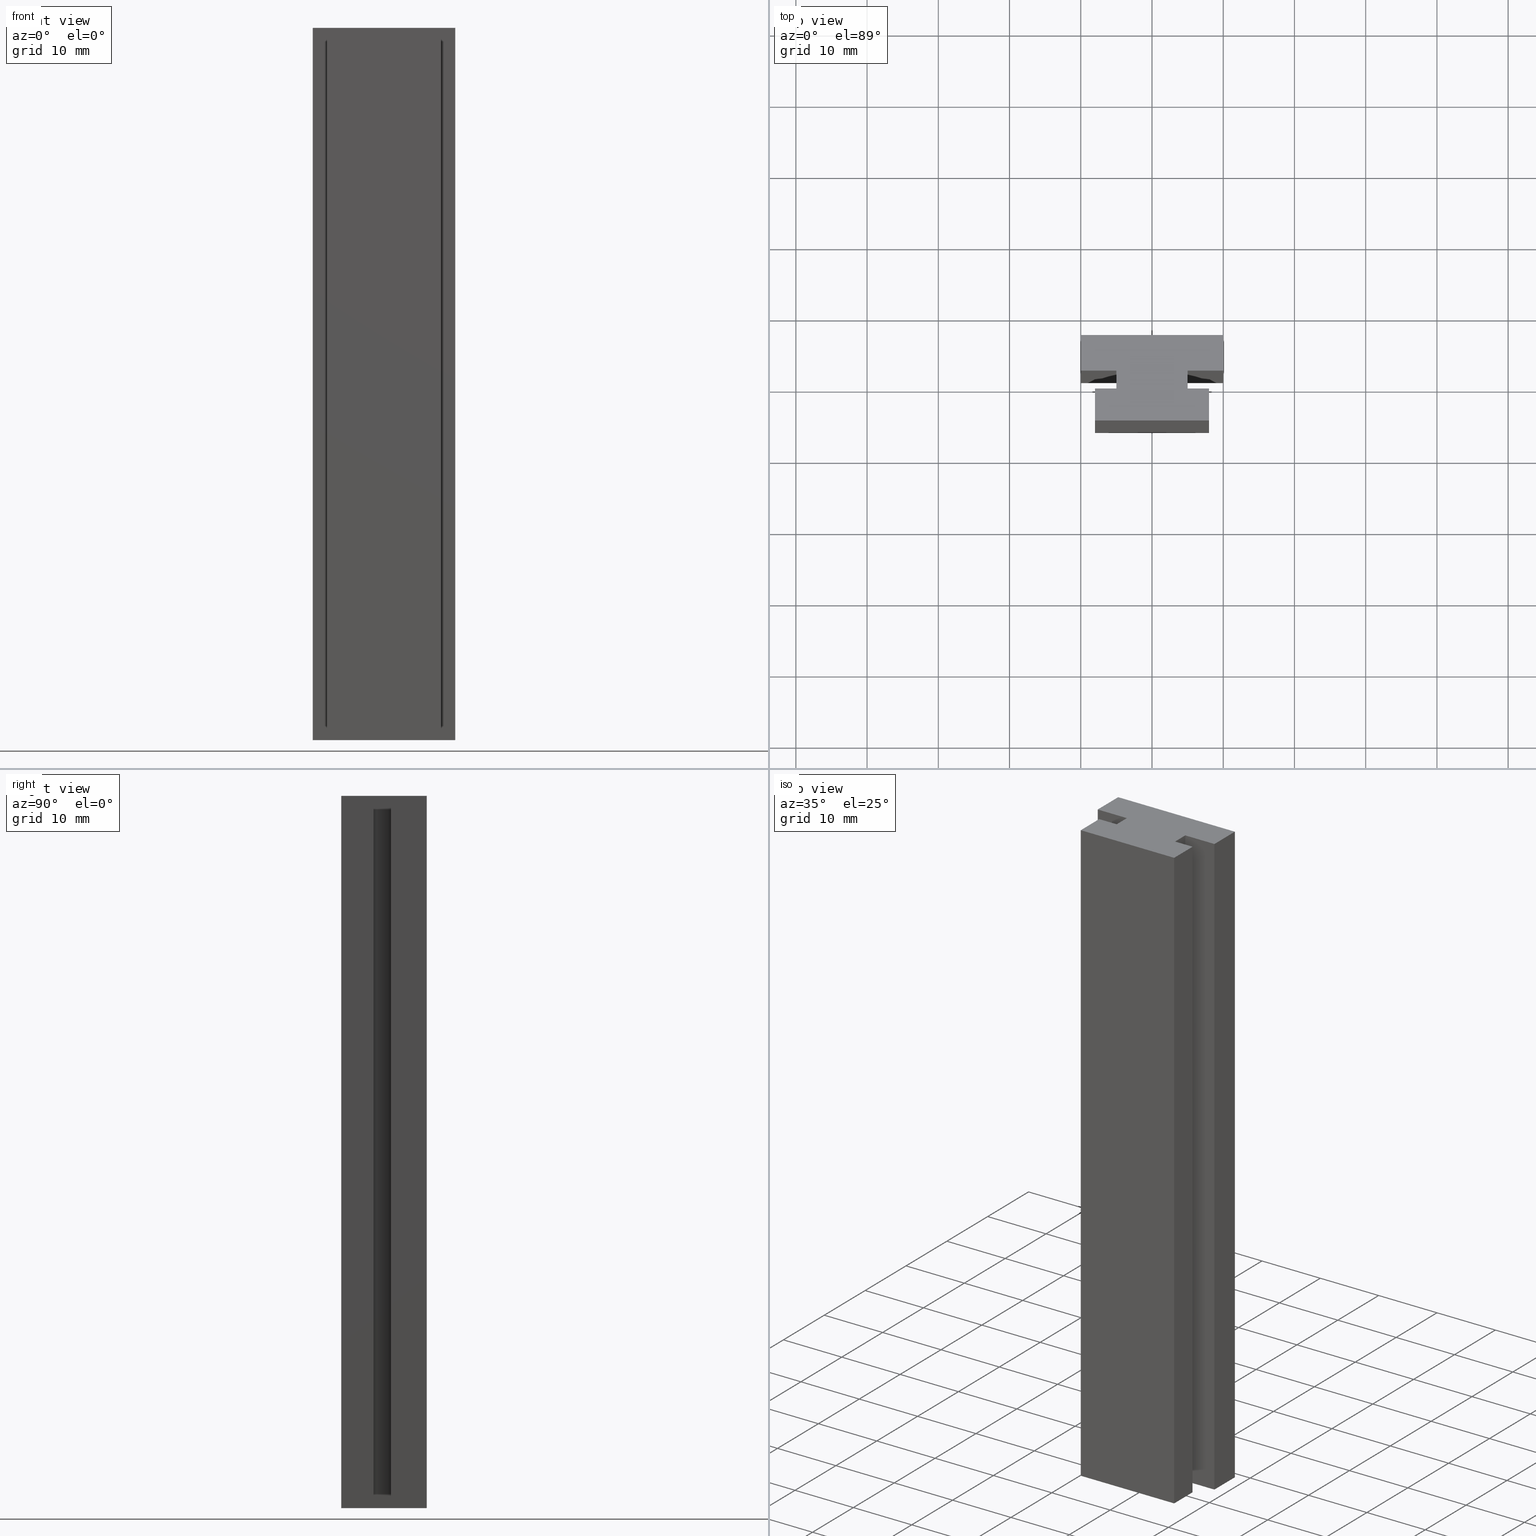
[diagram: canonical four-view strip — front | top / right | iso, engineering-drawing reading convention]
A machine part, canonical four-view strip (front | top / right | iso — engineering-drawing reading convention). The complete STEP part file that produces these views, byte-faithful:
ISO-10303-21;
HEADER;
/* Generated by software containing ST-Developer
 * from STEP Tools, Inc. (www.steptools.com) 
 */

FILE_DESCRIPTION(
/* description */ (''),
/* implementation_level */ '2;1');

FILE_NAME(
/* name */ 'Z:\\Nuovi render per accessori\\APRPZ0000018.stp',
/* time_stamp */ '2017-08-03T14:38:10+02:00',
/* author */ ('fzagni'),
/* organization */ (''),
/* preprocessor_version */ 'ST-DEVELOPER v16.1',
/* originating_system */ 'Autodesk Inventor 2016',
/* authorisation */ '');

FILE_SCHEMA (('AUTOMOTIVE_DESIGN { 1 0 10303 214 3 1 1 }'));
ENDSEC;

DATA;
#10=MECHANICAL_DESIGN_GEOMETRIC_PRESENTATION_REPRESENTATION('',(#13),#435);
#11=SHAPE_REPRESENTATION_RELATIONSHIP('SRR','None',#444,#12);
#12=ADVANCED_BREP_SHAPE_REPRESENTATION('',(#14),#434);
#13=STYLED_ITEM('',(#453),#14);
#14=MANIFOLD_SOLID_BREP('Solido1',#275);
#15=FACE_OUTER_BOUND('',#29,.T.);
#16=FACE_OUTER_BOUND('',#30,.T.);
#17=FACE_OUTER_BOUND('',#31,.T.);
#18=FACE_OUTER_BOUND('',#32,.T.);
#19=FACE_OUTER_BOUND('',#33,.T.);
#20=FACE_OUTER_BOUND('',#34,.T.);
#21=FACE_OUTER_BOUND('',#35,.T.);
#22=FACE_OUTER_BOUND('',#36,.T.);
#23=FACE_OUTER_BOUND('',#37,.T.);
#24=FACE_OUTER_BOUND('',#38,.T.);
#25=FACE_OUTER_BOUND('',#39,.T.);
#26=FACE_OUTER_BOUND('',#40,.T.);
#27=FACE_OUTER_BOUND('',#41,.T.);
#28=FACE_OUTER_BOUND('',#42,.T.);
#29=EDGE_LOOP('',(#175,#176,#177,#178));
#30=EDGE_LOOP('',(#179,#180,#181,#182));
#31=EDGE_LOOP('',(#183,#184,#185,#186));
#32=EDGE_LOOP('',(#187,#188,#189,#190));
#33=EDGE_LOOP('',(#191,#192,#193,#194));
#34=EDGE_LOOP('',(#195,#196,#197,#198));
#35=EDGE_LOOP('',(#199,#200,#201,#202));
#36=EDGE_LOOP('',(#203,#204,#205,#206));
#37=EDGE_LOOP('',(#207,#208,#209,#210));
#38=EDGE_LOOP('',(#211,#212,#213,#214));
#39=EDGE_LOOP('',(#215,#216,#217,#218));
#40=EDGE_LOOP('',(#219,#220,#221,#222));
#41=EDGE_LOOP('',(#223,#224,#225,#226,#227,#228,#229,#230,#231,#232,#233,
#234));
#42=EDGE_LOOP('',(#235,#236,#237,#238,#239,#240,#241,#242,#243,#244,#245,
#246));
#43=LINE('',#361,#79);
#44=LINE('',#363,#80);
#45=LINE('',#365,#81);
#46=LINE('',#366,#82);
#47=LINE('',#369,#83);
#48=LINE('',#371,#84);
#49=LINE('',#372,#85);
#50=LINE('',#375,#86);
#51=LINE('',#377,#87);
#52=LINE('',#378,#88);
#53=LINE('',#381,#89);
#54=LINE('',#383,#90);
#55=LINE('',#384,#91);
#56=LINE('',#387,#92);
#57=LINE('',#389,#93);
#58=LINE('',#390,#94);
#59=LINE('',#393,#95);
#60=LINE('',#395,#96);
#61=LINE('',#396,#97);
#62=LINE('',#399,#98);
#63=LINE('',#401,#99);
#64=LINE('',#402,#100);
#65=LINE('',#405,#101);
#66=LINE('',#407,#102);
#67=LINE('',#408,#103);
#68=LINE('',#411,#104);
#69=LINE('',#413,#105);
#70=LINE('',#414,#106);
#71=LINE('',#417,#107);
#72=LINE('',#419,#108);
#73=LINE('',#420,#109);
#74=LINE('',#423,#110);
#75=LINE('',#425,#111);
#76=LINE('',#426,#112);
#77=LINE('',#428,#113);
#78=LINE('',#429,#114);
#79=VECTOR('',#295,5.);
#80=VECTOR('',#296,100.);
#81=VECTOR('',#297,5.);
#82=VECTOR('',#298,100.);
#83=VECTOR('',#301,5.);
#84=VECTOR('',#302,5.);
#85=VECTOR('',#303,100.);
#86=VECTOR('',#306,2.5);
#87=VECTOR('',#307,2.5);
#88=VECTOR('',#308,100.);
#89=VECTOR('',#311,3.);
#90=VECTOR('',#312,3.);
#91=VECTOR('',#313,100.);
#92=VECTOR('',#316,4.5);
#93=VECTOR('',#317,4.5);
#94=VECTOR('',#318,100.);
#95=VECTOR('',#321,16.);
#96=VECTOR('',#322,16.);
#97=VECTOR('',#323,100.);
#98=VECTOR('',#326,4.5);
#99=VECTOR('',#327,4.5);
#100=VECTOR('',#328,100.);
#101=VECTOR('',#331,3.);
#102=VECTOR('',#332,3.);
#103=VECTOR('',#333,100.);
#104=VECTOR('',#336,2.5);
#105=VECTOR('',#337,2.5);
#106=VECTOR('',#338,100.);
#107=VECTOR('',#341,5.);
#108=VECTOR('',#342,5.);
#109=VECTOR('',#343,100.);
#110=VECTOR('',#346,5.);
#111=VECTOR('',#347,5.);
#112=VECTOR('',#348,100.);
#113=VECTOR('',#351,20.);
#114=VECTOR('',#352,20.);
#115=VERTEX_POINT('',#359);
#116=VERTEX_POINT('',#360);
#117=VERTEX_POINT('',#362);
#118=VERTEX_POINT('',#364);
#119=VERTEX_POINT('',#368);
#120=VERTEX_POINT('',#370);
#121=VERTEX_POINT('',#374);
#122=VERTEX_POINT('',#376);
#123=VERTEX_POINT('',#380);
#124=VERTEX_POINT('',#382);
#125=VERTEX_POINT('',#386);
#126=VERTEX_POINT('',#388);
#127=VERTEX_POINT('',#392);
#128=VERTEX_POINT('',#394);
#129=VERTEX_POINT('',#398);
#130=VERTEX_POINT('',#400);
#131=VERTEX_POINT('',#404);
#132=VERTEX_POINT('',#406);
#133=VERTEX_POINT('',#410);
#134=VERTEX_POINT('',#412);
#135=VERTEX_POINT('',#416);
#136=VERTEX_POINT('',#418);
#137=VERTEX_POINT('',#422);
#138=VERTEX_POINT('',#424);
#139=EDGE_CURVE('',#115,#116,#43,.T.);
#140=EDGE_CURVE('',#115,#117,#44,.T.);
#141=EDGE_CURVE('',#118,#117,#45,.T.);
#142=EDGE_CURVE('',#116,#118,#46,.T.);
#143=EDGE_CURVE('',#116,#119,#47,.T.);
#144=EDGE_CURVE('',#120,#118,#48,.T.);
#145=EDGE_CURVE('',#119,#120,#49,.T.);
#146=EDGE_CURVE('',#119,#121,#50,.T.);
#147=EDGE_CURVE('',#122,#120,#51,.T.);
#148=EDGE_CURVE('',#121,#122,#52,.T.);
#149=EDGE_CURVE('',#121,#123,#53,.T.);
#150=EDGE_CURVE('',#124,#122,#54,.T.);
#151=EDGE_CURVE('',#123,#124,#55,.T.);
#152=EDGE_CURVE('',#123,#125,#56,.T.);
#153=EDGE_CURVE('',#126,#124,#57,.T.);
#154=EDGE_CURVE('',#125,#126,#58,.T.);
#155=EDGE_CURVE('',#125,#127,#59,.T.);
#156=EDGE_CURVE('',#128,#126,#60,.T.);
#157=EDGE_CURVE('',#127,#128,#61,.T.);
#158=EDGE_CURVE('',#127,#129,#62,.T.);
#159=EDGE_CURVE('',#130,#128,#63,.T.);
#160=EDGE_CURVE('',#129,#130,#64,.T.);
#161=EDGE_CURVE('',#129,#131,#65,.T.);
#162=EDGE_CURVE('',#132,#130,#66,.T.);
#163=EDGE_CURVE('',#131,#132,#67,.T.);
#164=EDGE_CURVE('',#131,#133,#68,.T.);
#165=EDGE_CURVE('',#134,#132,#69,.T.);
#166=EDGE_CURVE('',#133,#134,#70,.T.);
#167=EDGE_CURVE('',#133,#135,#71,.T.);
#168=EDGE_CURVE('',#136,#134,#72,.T.);
#169=EDGE_CURVE('',#135,#136,#73,.T.);
#170=EDGE_CURVE('',#135,#137,#74,.T.);
#171=EDGE_CURVE('',#138,#136,#75,.T.);
#172=EDGE_CURVE('',#137,#138,#76,.T.);
#173=EDGE_CURVE('',#137,#115,#77,.T.);
#174=EDGE_CURVE('',#117,#138,#78,.T.);
#175=ORIENTED_EDGE('',*,*,#139,.F.);
#176=ORIENTED_EDGE('',*,*,#140,.T.);
#177=ORIENTED_EDGE('',*,*,#141,.F.);
#178=ORIENTED_EDGE('',*,*,#142,.F.);
#179=ORIENTED_EDGE('',*,*,#143,.F.);
#180=ORIENTED_EDGE('',*,*,#142,.T.);
#181=ORIENTED_EDGE('',*,*,#144,.F.);
#182=ORIENTED_EDGE('',*,*,#145,.F.);
#183=ORIENTED_EDGE('',*,*,#146,.F.);
#184=ORIENTED_EDGE('',*,*,#145,.T.);
#185=ORIENTED_EDGE('',*,*,#147,.F.);
#186=ORIENTED_EDGE('',*,*,#148,.F.);
#187=ORIENTED_EDGE('',*,*,#149,.F.);
#188=ORIENTED_EDGE('',*,*,#148,.T.);
#189=ORIENTED_EDGE('',*,*,#150,.F.);
#190=ORIENTED_EDGE('',*,*,#151,.F.);
#191=ORIENTED_EDGE('',*,*,#152,.F.);
#192=ORIENTED_EDGE('',*,*,#151,.T.);
#193=ORIENTED_EDGE('',*,*,#153,.F.);
#194=ORIENTED_EDGE('',*,*,#154,.F.);
#195=ORIENTED_EDGE('',*,*,#155,.F.);
#196=ORIENTED_EDGE('',*,*,#154,.T.);
#197=ORIENTED_EDGE('',*,*,#156,.F.);
#198=ORIENTED_EDGE('',*,*,#157,.F.);
#199=ORIENTED_EDGE('',*,*,#158,.F.);
#200=ORIENTED_EDGE('',*,*,#157,.T.);
#201=ORIENTED_EDGE('',*,*,#159,.F.);
#202=ORIENTED_EDGE('',*,*,#160,.F.);
#203=ORIENTED_EDGE('',*,*,#161,.F.);
#204=ORIENTED_EDGE('',*,*,#160,.T.);
#205=ORIENTED_EDGE('',*,*,#162,.F.);
#206=ORIENTED_EDGE('',*,*,#163,.F.);
#207=ORIENTED_EDGE('',*,*,#164,.F.);
#208=ORIENTED_EDGE('',*,*,#163,.T.);
#209=ORIENTED_EDGE('',*,*,#165,.F.);
#210=ORIENTED_EDGE('',*,*,#166,.F.);
#211=ORIENTED_EDGE('',*,*,#167,.F.);
#212=ORIENTED_EDGE('',*,*,#166,.T.);
#213=ORIENTED_EDGE('',*,*,#168,.F.);
#214=ORIENTED_EDGE('',*,*,#169,.F.);
#215=ORIENTED_EDGE('',*,*,#170,.F.);
#216=ORIENTED_EDGE('',*,*,#169,.T.);
#217=ORIENTED_EDGE('',*,*,#171,.F.);
#218=ORIENTED_EDGE('',*,*,#172,.F.);
#219=ORIENTED_EDGE('',*,*,#173,.F.);
#220=ORIENTED_EDGE('',*,*,#172,.T.);
#221=ORIENTED_EDGE('',*,*,#174,.F.);
#222=ORIENTED_EDGE('',*,*,#140,.F.);
#223=ORIENTED_EDGE('',*,*,#173,.T.);
#224=ORIENTED_EDGE('',*,*,#139,.T.);
#225=ORIENTED_EDGE('',*,*,#143,.T.);
#226=ORIENTED_EDGE('',*,*,#146,.T.);
#227=ORIENTED_EDGE('',*,*,#149,.T.);
#228=ORIENTED_EDGE('',*,*,#152,.T.);
#229=ORIENTED_EDGE('',*,*,#155,.T.);
#230=ORIENTED_EDGE('',*,*,#158,.T.);
#231=ORIENTED_EDGE('',*,*,#161,.T.);
#232=ORIENTED_EDGE('',*,*,#164,.T.);
#233=ORIENTED_EDGE('',*,*,#167,.T.);
#234=ORIENTED_EDGE('',*,*,#170,.T.);
#235=ORIENTED_EDGE('',*,*,#174,.T.);
#236=ORIENTED_EDGE('',*,*,#171,.T.);
#237=ORIENTED_EDGE('',*,*,#168,.T.);
#238=ORIENTED_EDGE('',*,*,#165,.T.);
#239=ORIENTED_EDGE('',*,*,#162,.T.);
#240=ORIENTED_EDGE('',*,*,#159,.T.);
#241=ORIENTED_EDGE('',*,*,#156,.T.);
#242=ORIENTED_EDGE('',*,*,#153,.T.);
#243=ORIENTED_EDGE('',*,*,#150,.T.);
#244=ORIENTED_EDGE('',*,*,#147,.T.);
#245=ORIENTED_EDGE('',*,*,#144,.T.);
#246=ORIENTED_EDGE('',*,*,#141,.T.);
#247=PLANE('',#277);
#248=PLANE('',#278);
#249=PLANE('',#279);
#250=PLANE('',#280);
#251=PLANE('',#281);
#252=PLANE('',#282);
#253=PLANE('',#283);
#254=PLANE('',#284);
#255=PLANE('',#285);
#256=PLANE('',#286);
#257=PLANE('',#287);
#258=PLANE('',#288);
#259=PLANE('',#289);
#260=PLANE('',#290);
#261=ADVANCED_FACE('',(#15),#247,.T.);
#262=ADVANCED_FACE('',(#16),#248,.T.);
#263=ADVANCED_FACE('',(#17),#249,.T.);
#264=ADVANCED_FACE('',(#18),#250,.T.);
#265=ADVANCED_FACE('',(#19),#251,.T.);
#266=ADVANCED_FACE('',(#20),#252,.T.);
#267=ADVANCED_FACE('',(#21),#253,.T.);
#268=ADVANCED_FACE('',(#22),#254,.T.);
#269=ADVANCED_FACE('',(#23),#255,.T.);
#270=ADVANCED_FACE('',(#24),#256,.T.);
#271=ADVANCED_FACE('',(#25),#257,.T.);
#272=ADVANCED_FACE('',(#26),#258,.T.);
#273=ADVANCED_FACE('',(#27),#259,.F.);
#274=ADVANCED_FACE('',(#28),#260,.T.);
#275=CLOSED_SHELL('',(#261,#262,#263,#264,#265,#266,#267,#268,#269,#270,
#271,#272,#273,#274));
#276=AXIS2_PLACEMENT_3D('placement',#357,#291,#292);
#277=AXIS2_PLACEMENT_3D('',#358,#293,#294);
#278=AXIS2_PLACEMENT_3D('',#367,#299,#300);
#279=AXIS2_PLACEMENT_3D('',#373,#304,#305);
#280=AXIS2_PLACEMENT_3D('',#379,#309,#310);
#281=AXIS2_PLACEMENT_3D('',#385,#314,#315);
#282=AXIS2_PLACEMENT_3D('',#391,#319,#320);
#283=AXIS2_PLACEMENT_3D('',#397,#324,#325);
#284=AXIS2_PLACEMENT_3D('',#403,#329,#330);
#285=AXIS2_PLACEMENT_3D('',#409,#334,#335);
#286=AXIS2_PLACEMENT_3D('',#415,#339,#340);
#287=AXIS2_PLACEMENT_3D('',#421,#344,#345);
#288=AXIS2_PLACEMENT_3D('',#427,#349,#350);
#289=AXIS2_PLACEMENT_3D('',#430,#353,#354);
#290=AXIS2_PLACEMENT_3D('',#431,#355,#356);
#291=DIRECTION('axis',(0.,0.,1.));
#292=DIRECTION('refdir',(1.,0.,0.));
#293=DIRECTION('center_axis',(1.,0.,0.));
#294=DIRECTION('ref_axis',(0.,1.,0.));
#295=DIRECTION('',(0.,-1.,0.));
#296=DIRECTION('',(0.,0.,1.));
#297=DIRECTION('',(0.,1.,0.));
#298=DIRECTION('',(0.,0.,1.));
#299=DIRECTION('center_axis',(-1.66533453693773E-16,-1.,0.));
#300=DIRECTION('ref_axis',(1.,-1.55431223447522E-16,0.));
#301=DIRECTION('',(-1.,1.66533453693773E-16,0.));
#302=DIRECTION('',(1.,-1.66533453693773E-16,0.));
#303=DIRECTION('',(0.,0.,1.));
#304=DIRECTION('center_axis',(1.,0.,0.));
#305=DIRECTION('ref_axis',(0.,1.,0.));
#306=DIRECTION('',(0.,-1.,0.));
#307=DIRECTION('',(0.,1.,0.));
#308=DIRECTION('',(0.,0.,1.));
#309=DIRECTION('center_axis',(-1.85037170770859E-16,1.,0.));
#310=DIRECTION('ref_axis',(-1.,-1.77635683940025E-16,0.));
#311=DIRECTION('',(1.,1.85037170770859E-16,0.));
#312=DIRECTION('',(-1.,-1.85037170770859E-16,0.));
#313=DIRECTION('',(0.,0.,1.));
#314=DIRECTION('center_axis',(1.,0.,0.));
#315=DIRECTION('ref_axis',(0.,1.,0.));
#316=DIRECTION('',(0.,-1.,0.));
#317=DIRECTION('',(0.,1.,0.));
#318=DIRECTION('',(0.,0.,1.));
#319=DIRECTION('center_axis',(0.,-1.,0.));
#320=DIRECTION('ref_axis',(1.,0.,0.));
#321=DIRECTION('',(-1.,0.,0.));
#322=DIRECTION('',(1.,0.,0.));
#323=DIRECTION('',(0.,0.,1.));
#324=DIRECTION('center_axis',(-1.,0.,0.));
#325=DIRECTION('ref_axis',(0.,-1.,0.));
#326=DIRECTION('',(0.,1.,0.));
#327=DIRECTION('',(0.,-1.,0.));
#328=DIRECTION('',(0.,0.,1.));
#329=DIRECTION('center_axis',(1.85037170770859E-16,1.,0.));
#330=DIRECTION('ref_axis',(-1.,1.77635683940025E-16,0.));
#331=DIRECTION('',(1.,-1.85037170770859E-16,0.));
#332=DIRECTION('',(-1.,1.85037170770859E-16,0.));
#333=DIRECTION('',(0.,0.,1.));
#334=DIRECTION('center_axis',(-1.,0.,0.));
#335=DIRECTION('ref_axis',(0.,-1.,0.));
#336=DIRECTION('',(0.,1.,0.));
#337=DIRECTION('',(0.,-1.,0.));
#338=DIRECTION('',(0.,0.,1.));
#339=DIRECTION('center_axis',(1.66533453693773E-16,-1.,0.));
#340=DIRECTION('ref_axis',(1.,1.55431223447522E-16,0.));
#341=DIRECTION('',(-1.,-1.66533453693773E-16,0.));
#342=DIRECTION('',(1.,1.66533453693773E-16,0.));
#343=DIRECTION('',(0.,0.,1.));
#344=DIRECTION('center_axis',(-1.,0.,0.));
#345=DIRECTION('ref_axis',(0.,-1.,0.));
#346=DIRECTION('',(0.,1.,0.));
#347=DIRECTION('',(0.,-1.,0.));
#348=DIRECTION('',(0.,0.,1.));
#349=DIRECTION('center_axis',(0.,1.,0.));
#350=DIRECTION('ref_axis',(-1.,0.,0.));
#351=DIRECTION('',(1.,0.,0.));
#352=DIRECTION('',(-1.,0.,0.));
#353=DIRECTION('center_axis',(0.,0.,1.));
#354=DIRECTION('ref_axis',(1.,0.,0.));
#355=DIRECTION('center_axis',(0.,0.,1.));
#356=DIRECTION('ref_axis',(1.,0.,0.));
#357=CARTESIAN_POINT('',(0.,0.,0.));
#358=CARTESIAN_POINT('Origin',(10.,1.25,0.));
#359=CARTESIAN_POINT('',(10.,6.25,0.));
#360=CARTESIAN_POINT('',(10.,1.25,0.));
#361=CARTESIAN_POINT('',(10.,6.25,0.));
#362=CARTESIAN_POINT('',(10.,6.25,100.));
#363=CARTESIAN_POINT('',(10.,6.25,0.));
#364=CARTESIAN_POINT('',(10.,1.25,100.));
#365=CARTESIAN_POINT('',(10.,6.25,100.));
#366=CARTESIAN_POINT('',(10.,1.25,0.));
#367=CARTESIAN_POINT('Origin',(5.,1.25,0.));
#368=CARTESIAN_POINT('',(5.,1.25,0.));
#369=CARTESIAN_POINT('',(10.,1.25,0.));
#370=CARTESIAN_POINT('',(5.,1.25,100.));
#371=CARTESIAN_POINT('',(10.,1.25,100.));
#372=CARTESIAN_POINT('',(5.,1.25,0.));
#373=CARTESIAN_POINT('Origin',(5.,-1.25,0.));
#374=CARTESIAN_POINT('',(5.,-1.25,0.));
#375=CARTESIAN_POINT('',(5.,1.25,0.));
#376=CARTESIAN_POINT('',(5.,-1.25,100.));
#377=CARTESIAN_POINT('',(5.,1.25,100.));
#378=CARTESIAN_POINT('',(5.,-1.25,0.));
#379=CARTESIAN_POINT('Origin',(8.,-1.25,0.));
#380=CARTESIAN_POINT('',(8.,-1.25,0.));
#381=CARTESIAN_POINT('',(5.,-1.25,0.));
#382=CARTESIAN_POINT('',(8.,-1.25,100.));
#383=CARTESIAN_POINT('',(5.,-1.25,100.));
#384=CARTESIAN_POINT('',(8.,-1.25,0.));
#385=CARTESIAN_POINT('Origin',(8.,-5.75,0.));
#386=CARTESIAN_POINT('',(8.,-5.75,0.));
#387=CARTESIAN_POINT('',(8.,-1.25,0.));
#388=CARTESIAN_POINT('',(8.,-5.75,100.));
#389=CARTESIAN_POINT('',(8.,-1.25,100.));
#390=CARTESIAN_POINT('',(8.,-5.75,0.));
#391=CARTESIAN_POINT('Origin',(-8.,-5.75,0.));
#392=CARTESIAN_POINT('',(-8.,-5.75,0.));
#393=CARTESIAN_POINT('',(8.,-5.75,0.));
#394=CARTESIAN_POINT('',(-8.,-5.75,100.));
#395=CARTESIAN_POINT('',(8.,-5.75,100.));
#396=CARTESIAN_POINT('',(-8.,-5.75,0.));
#397=CARTESIAN_POINT('Origin',(-8.,-1.25,0.));
#398=CARTESIAN_POINT('',(-8.,-1.25,0.));
#399=CARTESIAN_POINT('',(-8.,-5.75,0.));
#400=CARTESIAN_POINT('',(-8.,-1.25,100.));
#401=CARTESIAN_POINT('',(-8.,-5.75,100.));
#402=CARTESIAN_POINT('',(-8.,-1.25,0.));
#403=CARTESIAN_POINT('Origin',(-5.,-1.25,0.));
#404=CARTESIAN_POINT('',(-5.,-1.25,0.));
#405=CARTESIAN_POINT('',(-8.,-1.25,0.));
#406=CARTESIAN_POINT('',(-5.,-1.25,100.));
#407=CARTESIAN_POINT('',(-8.,-1.25,100.));
#408=CARTESIAN_POINT('',(-5.,-1.25,0.));
#409=CARTESIAN_POINT('Origin',(-5.,1.25,0.));
#410=CARTESIAN_POINT('',(-5.,1.25,0.));
#411=CARTESIAN_POINT('',(-5.,-1.25,0.));
#412=CARTESIAN_POINT('',(-5.,1.25,100.));
#413=CARTESIAN_POINT('',(-5.,-1.25,100.));
#414=CARTESIAN_POINT('',(-5.,1.25,0.));
#415=CARTESIAN_POINT('Origin',(-10.,1.25,0.));
#416=CARTESIAN_POINT('',(-10.,1.25,0.));
#417=CARTESIAN_POINT('',(-5.,1.25,0.));
#418=CARTESIAN_POINT('',(-10.,1.25,100.));
#419=CARTESIAN_POINT('',(-5.,1.25,100.));
#420=CARTESIAN_POINT('',(-10.,1.25,0.));
#421=CARTESIAN_POINT('Origin',(-10.,6.25,0.));
#422=CARTESIAN_POINT('',(-10.,6.25,0.));
#423=CARTESIAN_POINT('',(-10.,1.25,0.));
#424=CARTESIAN_POINT('',(-10.,6.25,100.));
#425=CARTESIAN_POINT('',(-10.,1.25,100.));
#426=CARTESIAN_POINT('',(-10.,6.25,0.));
#427=CARTESIAN_POINT('Origin',(10.,6.25,0.));
#428=CARTESIAN_POINT('',(-10.,6.25,0.));
#429=CARTESIAN_POINT('',(-10.,6.25,100.));
#430=CARTESIAN_POINT('Origin',(3.28684448079816E-16,0.578947368421053,0.));
#431=CARTESIAN_POINT('Origin',(0.,0.578947368421053,100.));
#432=UNCERTAINTY_MEASURE_WITH_UNIT(LENGTH_MEASURE(0.01),#436,
'DISTANCE_ACCURACY_VALUE',
'Maximum model space distance between geometric entities at asserted c
onnectivities');
#433=UNCERTAINTY_MEASURE_WITH_UNIT(LENGTH_MEASURE(1.E-6),#436,
'DISTANCE_ACCURACY_VALUE',
'Maximum model space distance between geometric entities at asserted c
onnectivities');
#434=(
GEOMETRIC_REPRESENTATION_CONTEXT(3)
GLOBAL_UNCERTAINTY_ASSIGNED_CONTEXT((#432))
GLOBAL_UNIT_ASSIGNED_CONTEXT((#436,#439,#437))
REPRESENTATION_CONTEXT('','3D')
);
#435=(
GEOMETRIC_REPRESENTATION_CONTEXT(3)
GLOBAL_UNCERTAINTY_ASSIGNED_CONTEXT((#433))
GLOBAL_UNIT_ASSIGNED_CONTEXT((#436,#439,#437))
REPRESENTATION_CONTEXT('','3D')
);
#436=(
LENGTH_UNIT()
NAMED_UNIT(*)
SI_UNIT(.MILLI.,.METRE.)
);
#437=(
NAMED_UNIT(*)
SI_UNIT($,.STERADIAN.)
SOLID_ANGLE_UNIT()
);
#438=DIMENSIONAL_EXPONENTS(0.,0.,0.,0.,0.,0.,0.);
#439=(
CONVERSION_BASED_UNIT('degree',#441)
NAMED_UNIT(#438)
PLANE_ANGLE_UNIT()
);
#440=(
NAMED_UNIT(*)
PLANE_ANGLE_UNIT()
SI_UNIT($,.RADIAN.)
);
#441=PLANE_ANGLE_MEASURE_WITH_UNIT(PLANE_ANGLE_MEASURE(0.01745329252),#440);
#442=SHAPE_DEFINITION_REPRESENTATION(#443,#444);
#443=PRODUCT_DEFINITION_SHAPE('',$,#446);
#444=SHAPE_REPRESENTATION('',(#276),#434);
#445=PRODUCT_DEFINITION_CONTEXT('part definition',#450,'design');
#446=PRODUCT_DEFINITION('APRPZ0000018','APRPZ0000018',#447,#445);
#447=PRODUCT_DEFINITION_FORMATION('',$,#452);
#448=PRODUCT_RELATED_PRODUCT_CATEGORY('APRPZ0000018','APRPZ0000018',(#452));
#449=APPLICATION_PROTOCOL_DEFINITION('international standard',
'automotive_design',2009,#450);
#450=APPLICATION_CONTEXT(
'Core Data for Automotive Mechanical Design Process');
#451=PRODUCT_CONTEXT('part definition',#450,'mechanical');
#452=PRODUCT('APRPZ0000018','APRPZ0000018',$,(#451));
#453=PRESENTATION_STYLE_ASSIGNMENT((#454));
#454=SURFACE_STYLE_USAGE(.BOTH.,#455);
#455=SURFACE_SIDE_STYLE('',(#456));
#456=SURFACE_STYLE_FILL_AREA(#457);
#457=FILL_AREA_STYLE('',(#458));
#458=FILL_AREA_STYLE_COLOUR('',#459);
#459=COLOUR_RGB('',0.501960784313725,0.501960784313725,0.501960784313725);
ENDSEC;
END-ISO-10303-21;
